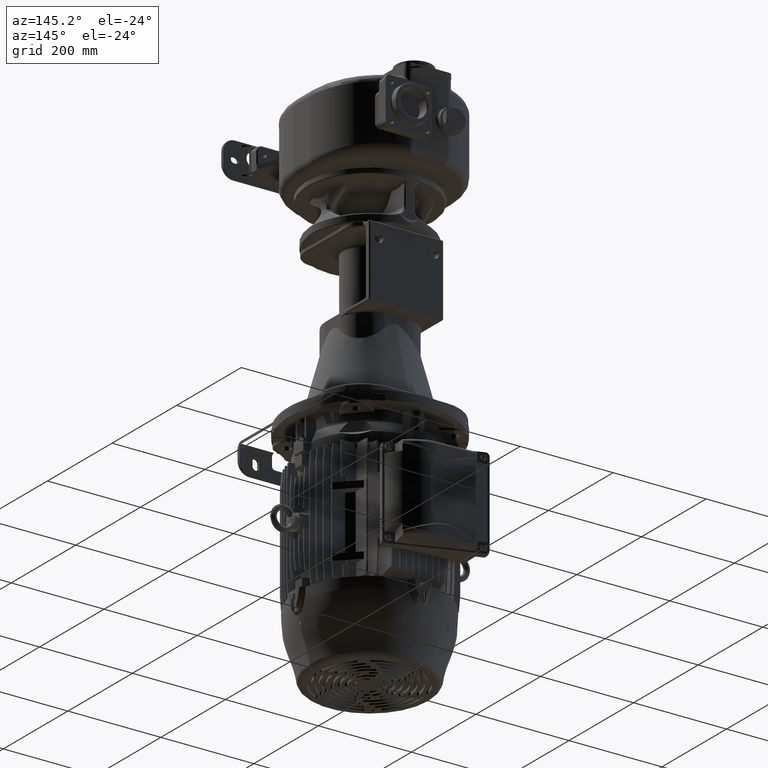
[diagram: clean part render]
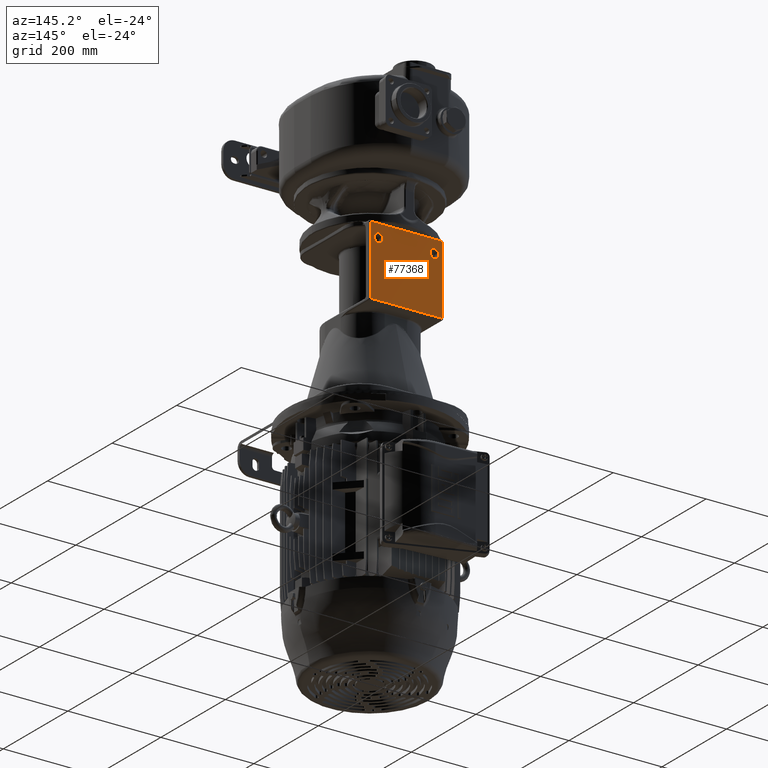
[diagram: same view with one face highlighted and labeled with its STEP entity id]
A machine part, auxiliary view. The second image highlights one B-rep face of the part: STEP entity #77368.
In plain terms, the highlighted planar face has unit normal (0, 1, 0).
Its self-contained STEP definition (entity closure, byte-faithful):
#3912=DIRECTION('',(-1.E0,0.E0,0.E0));
#3913=VECTOR('',#3912,1.54E2);
#3914=CARTESIAN_POINT('',(7.7E1,2.73E2,-3.585E2));
#3915=LINE('',#3914,#3913);
#3916=CARTESIAN_POINT('',(7.7E1,2.73E2,-2.095E2));
#3917=CARTESIAN_POINT('',(7.7E1,2.73E2,-2.591666666667E2));
#3918=CARTESIAN_POINT('',(7.7E1,2.73E2,-3.088333333333E2));
#3919=CARTESIAN_POINT('',(7.7E1,2.73E2,-3.585E2));
#3921=DIRECTION('',(1.E0,0.E0,0.E0));
#3922=VECTOR('',#3921,1.54E2);
#3923=CARTESIAN_POINT('',(-7.7E1,2.73E2,-2.095E2));
#3924=LINE('',#3923,#3922);
#3925=CARTESIAN_POINT('',(-7.7E1,2.73E2,-3.585E2));
#3926=CARTESIAN_POINT('',(-7.7E1,2.73E2,-3.088333333333E2));
#3927=CARTESIAN_POINT('',(-7.7E1,2.73E2,-2.591666666667E2));
#3928=CARTESIAN_POINT('',(-7.7E1,2.73E2,-2.095E2));
#3930=CARTESIAN_POINT('',(6.E1,2.73E2,-2.375E2));
#3931=DIRECTION('',(0.E0,1.E0,0.E0));
#3932=DIRECTION('',(0.E0,0.E0,1.E0));
#3933=AXIS2_PLACEMENT_3D('',#3930,#3931,#3932);
#3935=CARTESIAN_POINT('',(6.E1,2.73E2,-2.375E2));
#3936=DIRECTION('',(0.E0,1.E0,0.E0));
#3937=DIRECTION('',(0.E0,0.E0,-1.E0));
#3938=AXIS2_PLACEMENT_3D('',#3935,#3936,#3937);
#3940=CARTESIAN_POINT('',(-6.E1,2.73E2,-2.375E2));
#3941=DIRECTION('',(0.E0,1.E0,0.E0));
#3942=DIRECTION('',(0.E0,0.E0,1.E0));
#3943=AXIS2_PLACEMENT_3D('',#3940,#3941,#3942);
#3945=CARTESIAN_POINT('',(-6.E1,2.73E2,-2.375E2));
#3946=DIRECTION('',(0.E0,1.E0,0.E0));
#3947=DIRECTION('',(0.E0,0.E0,-1.E0));
#3948=AXIS2_PLACEMENT_3D('',#3945,#3946,#3947);
#65671=CARTESIAN_POINT('',(7.7E1,2.73E2,-3.585E2));
#65672=CARTESIAN_POINT('',(-7.7E1,2.73E2,-3.585E2));
#65673=VERTEX_POINT('',#65671);
#65674=VERTEX_POINT('',#65672);
#65679=CARTESIAN_POINT('',(-7.7E1,2.73E2,-2.095E2));
#65680=CARTESIAN_POINT('',(7.7E1,2.73E2,-2.095E2));
#65681=VERTEX_POINT('',#65679);
#65682=VERTEX_POINT('',#65680);
#65811=CARTESIAN_POINT('',(6.E1,2.73E2,-2.28E2));
#65812=CARTESIAN_POINT('',(6.E1,2.73E2,-2.47E2));
#65813=VERTEX_POINT('',#65811);
#65814=VERTEX_POINT('',#65812);
#65815=CARTESIAN_POINT('',(-6.E1,2.73E2,-2.28E2));
#65816=CARTESIAN_POINT('',(-6.E1,2.73E2,-2.47E2));
#65817=VERTEX_POINT('',#65815);
#65818=VERTEX_POINT('',#65816);
#77342=CARTESIAN_POINT('',(0.E0,2.73E2,-2.85E2));
#77343=DIRECTION('',(0.E0,1.E0,0.E0));
#77344=DIRECTION('',(0.E0,0.E0,-1.E0));
#77345=AXIS2_PLACEMENT_3D('',#77342,#77343,#77344);
#77346=PLANE('',#77345);
#77348=ORIENTED_EDGE('',*,*,#77347,.F.);
#77350=ORIENTED_EDGE('',*,*,#77349,.F.);
#77351=ORIENTED_EDGE('',*,*,#77335,.F.);
#77353=ORIENTED_EDGE('',*,*,#77352,.F.);
#77354=EDGE_LOOP('',(#77348,#77350,#77351,#77353));
#77355=FACE_OUTER_BOUND('',#77354,.F.);
#77357=ORIENTED_EDGE('',*,*,#77356,.T.);
#77359=ORIENTED_EDGE('',*,*,#77358,.T.);
#77360=EDGE_LOOP('',(#77357,#77359));
#77361=FACE_BOUND('',#77360,.F.);
#77363=ORIENTED_EDGE('',*,*,#77362,.T.);
#77365=ORIENTED_EDGE('',*,*,#77364,.T.);
#77366=EDGE_LOOP('',(#77363,#77365));
#77367=FACE_BOUND('',#77366,.F.);
#77368=ADVANCED_FACE('',(#77355,#77361,#77367),#77346,.T.);
#3920=B_SPLINE_CURVE_WITH_KNOTS('',3,(#3916,#3917,#3918,#3919),.UNSPECIFIED.,
.F.,.F.,(4,4),(0.E0,1.E0),.UNSPECIFIED.);
#3929=B_SPLINE_CURVE_WITH_KNOTS('',3,(#3925,#3926,#3927,#3928),.UNSPECIFIED.,
.F.,.F.,(4,4),(0.E0,1.E0),.UNSPECIFIED.);
#3934=CIRCLE('',#3933,9.5E0);
#3939=CIRCLE('',#3938,9.5E0);
#3944=CIRCLE('',#3943,9.5E0);
#3949=CIRCLE('',#3948,9.5E0);
#77335=EDGE_CURVE('',#65681,#65682,#3924,.T.);
#77347=EDGE_CURVE('',#65673,#65674,#3915,.T.);
#77349=EDGE_CURVE('',#65682,#65673,#3920,.T.);
#77352=EDGE_CURVE('',#65674,#65681,#3929,.T.);
#77356=EDGE_CURVE('',#65813,#65814,#3934,.T.);
#77358=EDGE_CURVE('',#65814,#65813,#3939,.T.);
#77362=EDGE_CURVE('',#65817,#65818,#3944,.T.);
#77364=EDGE_CURVE('',#65818,#65817,#3949,.T.);